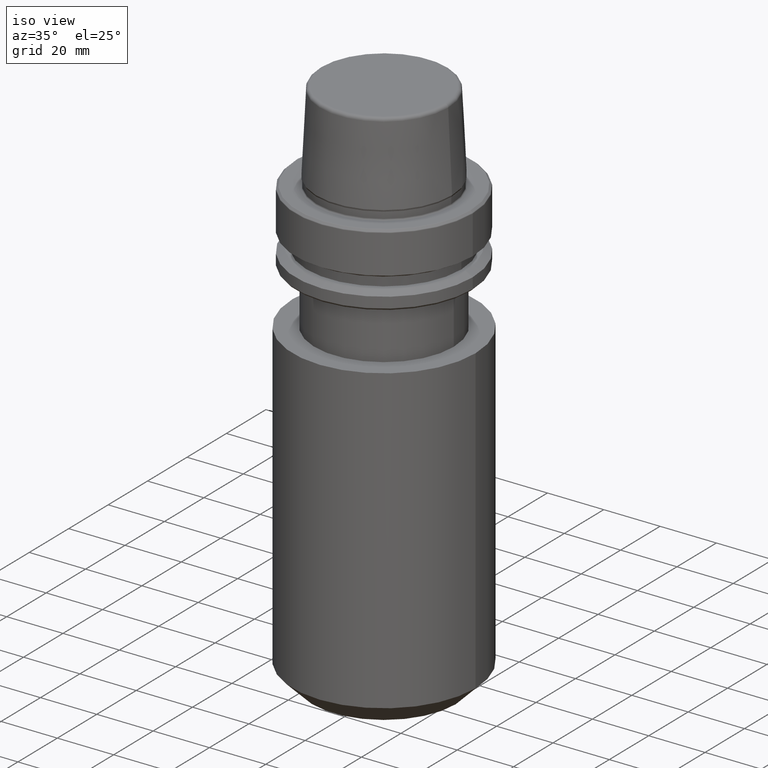
[diagram: clean part render]
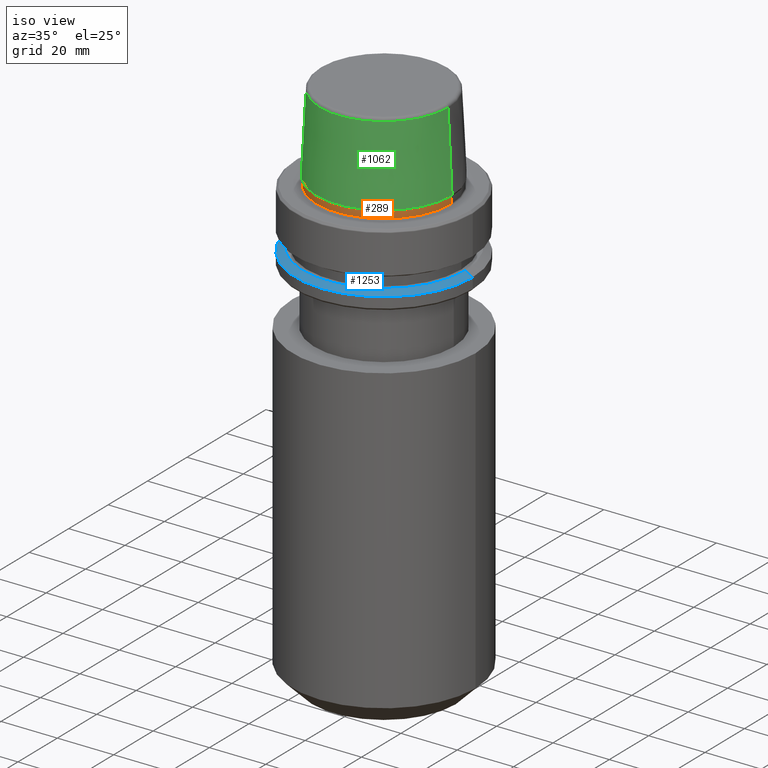
[diagram: same view with three faces highlighted in distinct colors, each labeled with its STEP entity id]
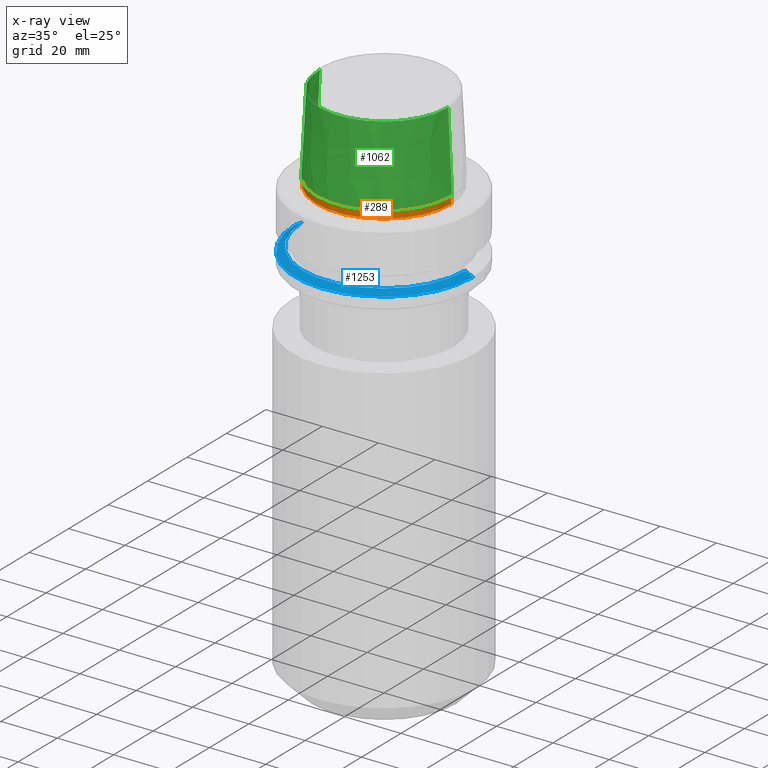
[diagram: x-ray of the same camera — body ghosted, the three highlighted faces saturated]
A machine part, iso view with three faces highlighted in distinct colors.
The next image is the same camera in x-ray (body ghosted, the three faces saturated) — at least one of them is partly hidden behind the body in this view.
Their STEP definitions:

[orange] entity #289 — the highlighted cylindrical surface (partial cylindrical patch) has radius 23.89 mm, axis along (-0, -0, 1).
#1 = DIRECTION ( 'NONE',  ( -0.0000000000000000000, -0.0000000000000000000, 1.000000000000000000 ) ) ;
#19 = AXIS2_PLACEMENT_3D ( 'NONE', #609, #1, #723 ) ;
#30 = LINE ( 'NONE', #692, #541 ) ;
#75 = DIRECTION ( 'NONE',  ( -0.0000000000000000000, -0.0000000000000000000, 1.000000000000000000 ) ) ;
#142 = CIRCLE ( 'NONE', #19, 23.89000000000000100 ) ;
#193 = FACE_OUTER_BOUND ( 'NONE', #762, .T. ) ;
#203 = CARTESIAN_POINT ( 'NONE',  ( 23.89000000000000400, 0.0000000000000000000, 0.1312552021302954000 ) ) ;
#241 = ORIENTED_EDGE ( 'NONE', *, *, #656, .T. ) ;
#286 = CARTESIAN_POINT ( 'NONE',  ( 0.0000000000000000000, 0.0000000000000000000, 0.1312552021302954000 ) ) ;
#289 = ADVANCED_FACE ( 'NONE', ( #193 ), #872, .T. ) ;
#380 = DIRECTION ( 'NONE',  ( 1.000000000000000000, 0.0000000000000000000, 0.0000000000000000000 ) ) ;
#382 = VERTEX_POINT ( 'NONE', #203 ) ;
#386 = CARTESIAN_POINT ( 'NONE',  ( -23.89000000000000400, 2.961613815265650600E-015, 0.1312552021302954000 ) ) ;
#434 = DIRECTION ( 'NONE',  ( 1.000000000000000000, 0.0000000000000000000, 0.0000000000000000000 ) ) ;
#493 = CARTESIAN_POINT ( 'NONE',  ( -23.89000000000000100, 2.942846235451747500E-015, 2.398838415132276100 ) ) ;
#541 = VECTOR ( 'NONE', #75, 1000.000000000000000 ) ;
#609 = CARTESIAN_POINT ( 'NONE',  ( 0.0000000000000000000, 0.0000000000000000000, 2.398838415132276100 ) ) ;
#632 = DIRECTION ( 'NONE',  ( -0.0000000000000000000, -0.0000000000000000000, 1.000000000000000000 ) ) ;
#644 = DIRECTION ( 'NONE',  ( -0.0000000000000000000, -0.0000000000000000000, 1.000000000000000000 ) ) ;
#651 = EDGE_CURVE ( 'NONE', #707, #1182, #30, .T. ) ;
#656 = EDGE_CURVE ( 'NONE', #707, #382, #1095, .T. ) ;
#692 = CARTESIAN_POINT ( 'NONE',  ( -23.89000000000000100, 2.925681203163027000E-015, 78.96908074195309300 ) ) ;
#707 = VERTEX_POINT ( 'NONE', #386 ) ;
#723 = DIRECTION ( 'NONE',  ( 1.000000000000000000, 0.0000000000000000000, 0.0000000000000000000 ) ) ;
#739 = VECTOR ( 'NONE', #644, 1000.000000000000000 ) ;
#762 = EDGE_LOOP ( 'NONE', ( #1339, #241, #1279, #924 ) ) ;
#792 = AXIS2_PLACEMENT_3D ( 'NONE', #286, #1012, #380 ) ;
#841 = CARTESIAN_POINT ( 'NONE',  ( 0.0000000000000000000, 0.0000000000000000000, 78.96908074195309300 ) ) ;
#864 = CARTESIAN_POINT ( 'NONE',  ( 23.89000000000000100, 0.0000000000000000000, 2.398838415132276100 ) ) ;
#872 = CYLINDRICAL_SURFACE ( 'NONE', #1257, 23.89000000000000100 ) ;
#924 = ORIENTED_EDGE ( 'NONE', *, *, #1293, .F. ) ;
#938 = EDGE_CURVE ( 'NONE', #382, #1006, #1313, .T. ) ;
#1006 = VERTEX_POINT ( 'NONE', #864 ) ;
#1012 = DIRECTION ( 'NONE',  ( -0.0000000000000000000, -0.0000000000000000000, 1.000000000000000000 ) ) ;
#1095 = CIRCLE ( 'NONE', #792, 23.89000000000000400 ) ;
#1182 = VERTEX_POINT ( 'NONE', #493 ) ;
#1257 = AXIS2_PLACEMENT_3D ( 'NONE', #841, #632, #434 ) ;
#1272 = CARTESIAN_POINT ( 'NONE',  ( 23.89000000000000100, 0.0000000000000000000, 78.96908074195309300 ) ) ;
#1279 = ORIENTED_EDGE ( 'NONE', *, *, #938, .T. ) ;
#1293 = EDGE_CURVE ( 'NONE', #1182, #1006, #142, .T. ) ;
#1313 = LINE ( 'NONE', #1272, #739 ) ;
#1339 = ORIENTED_EDGE ( 'NONE', *, *, #651, .F. ) ;

[blue] entity #1253 — the highlighted conical surface has half-angle 60 deg.
#36 = EDGE_LOOP ( 'NONE', ( #1029, #661, #1319, #527 ) ) ;
#38 = AXIS2_PLACEMENT_3D ( 'NONE', #165, #827, #966 ) ;
#55 = CARTESIAN_POINT ( 'NONE',  ( -28.94089653438085100, 0.0000000000000000000, -19.90000000000001600 ) ) ;
#97 = CARTESIAN_POINT ( 'NONE',  ( 31.50000000000000000, 0.0000000000000000000, -21.37749907475931700 ) ) ;
#147 = EDGE_CURVE ( 'NONE', #547, #1147, #731, .T. ) ;
#165 = CARTESIAN_POINT ( 'NONE',  ( 0.0000000000000000000, 0.0000000000000000000, -19.90000000000001600 ) ) ;
#205 = CONICAL_SURFACE ( 'NONE', #1081, 31.50000000000000000, 1.047197551196602500 ) ;
#217 = EDGE_CURVE ( 'NONE', #1147, #1296, #676, .T. ) ;
#246 = FACE_OUTER_BOUND ( 'NONE', #36, .T. ) ;
#442 = CARTESIAN_POINT ( 'NONE',  ( 0.0000000000000000000, 0.0000000000000000000, -21.37749907475931700 ) ) ;
#502 = CARTESIAN_POINT ( 'NONE',  ( 0.0000000000000000000, 0.0000000000000000000, -21.37749907475931700 ) ) ;
#515 = CIRCLE ( 'NONE', #38, 28.94089653438085100 ) ;
#527 = ORIENTED_EDGE ( 'NONE', *, *, #217, .T. ) ;
#547 = VERTEX_POINT ( 'NONE', #55 ) ;
#552 = VERTEX_POINT ( 'NONE', #1287 ) ;
#555 = EDGE_CURVE ( 'NONE', #547, #552, #515, .T. ) ;
#558 = AXIS2_PLACEMENT_3D ( 'NONE', #442, #1163, #1073 ) ;
#605 = DIRECTION ( 'NONE',  ( 0.8660254037844410400, 1.060575238724909700E-016, -0.4999999999999958400 ) ) ;
#661 = ORIENTED_EDGE ( 'NONE', *, *, #555, .F. ) ;
#676 = CIRCLE ( 'NONE', #558, 31.50000000000000000 ) ;
#680 = LINE ( 'NONE', #1233, #1171 ) ;
#731 = LINE ( 'NONE', #879, #1194 ) ;
#794 = EDGE_CURVE ( 'NONE', #552, #1296, #680, .T. ) ;
#812 = DIRECTION ( 'NONE',  ( -1.000000000000000000, 0.0000000000000000000, 0.0000000000000000000 ) ) ;
#827 = DIRECTION ( 'NONE',  ( -0.0000000000000000000, -0.0000000000000000000, 1.000000000000000000 ) ) ;
#879 = CARTESIAN_POINT ( 'NONE',  ( -31.50000000000000000, 0.0000000000000000000, -21.37749907475931700 ) ) ;
#887 = CARTESIAN_POINT ( 'NONE',  ( -31.50000000000000000, 3.857637417314162700E-015, -21.37749907475931700 ) ) ;
#966 = DIRECTION ( 'NONE',  ( 1.000000000000000000, 0.0000000000000000000, 0.0000000000000000000 ) ) ;
#1029 = ORIENTED_EDGE ( 'NONE', *, *, #794, .F. ) ;
#1073 = DIRECTION ( 'NONE',  ( 1.000000000000000000, 0.0000000000000000000, 0.0000000000000000000 ) ) ;
#1081 = AXIS2_PLACEMENT_3D ( 'NONE', #502, #1318, #812 ) ;
#1147 = VERTEX_POINT ( 'NONE', #887 ) ;
#1163 = DIRECTION ( 'NONE',  ( -0.0000000000000000000, -0.0000000000000000000, 1.000000000000000000 ) ) ;
#1171 = VECTOR ( 'NONE', #605, 1000.000000000000100 ) ;
#1194 = VECTOR ( 'NONE', #1201, 1000.000000000000100 ) ;
#1201 = DIRECTION ( 'NONE',  ( -0.8660254037844410400, 0.0000000000000000000, -0.4999999999999958400 ) ) ;
#1233 = CARTESIAN_POINT ( 'NONE',  ( 31.50000000000000000, 3.857637417314162700E-015, -21.37749907475931700 ) ) ;
#1253 = ADVANCED_FACE ( 'NONE', ( #246 ), #205, .T. ) ;
#1287 = CARTESIAN_POINT ( 'NONE',  ( 28.94089653438085100, 3.700937523921292900E-015, -19.90000000000001600 ) ) ;
#1296 = VERTEX_POINT ( 'NONE', #97 ) ;
#1318 = DIRECTION ( 'NONE',  ( 0.0000000000000000000, 0.0000000000000000000, -1.000000000000000000 ) ) ;
#1319 = ORIENTED_EDGE ( 'NONE', *, *, #147, .T. ) ;

[green] entity #1062 — the highlighted conical surface has half-angle 2.868 deg.
#243 = LINE ( 'NONE', #704, #478 ) ;
#308 = CARTESIAN_POINT ( 'NONE',  ( -24.17032625081241900, 0.0000000000000000000, 3.000000000000002700 ) ) ;
#333 = DIRECTION ( 'NONE',  ( -0.0000000000000000000, -0.0000000000000000000, 1.000000000000000000 ) ) ;
#353 = EDGE_CURVE ( 'NONE', #1051, #1269, #439, .T. ) ;
#401 = CARTESIAN_POINT ( 'NONE',  ( 24.17032625081241900, 0.0000000000000000000, 3.000000000000002700 ) ) ;
#409 = VECTOR ( 'NONE', #1028, 1000.000000000000200 ) ;
#439 = CIRCLE ( 'NONE', #1322, 24.17032625081241900 ) ;
#478 = VECTOR ( 'NONE', #1321, 1000.000000000000200 ) ;
#556 = DIRECTION ( 'NONE',  ( 0.0000000000000000000, 0.0000000000000000000, -1.000000000000000000 ) ) ;
#557 = ORIENTED_EDGE ( 'NONE', *, *, #726, .F. ) ;
#575 = VERTEX_POINT ( 'NONE', #648 ) ;
#592 = AXIS2_PLACEMENT_3D ( 'NONE', #871, #556, #768 ) ;
#648 = CARTESIAN_POINT ( 'NONE',  ( -22.77957961851797100, 0.0000000000000000000, 30.76004333261571900 ) ) ;
#704 = CARTESIAN_POINT ( 'NONE',  ( 24.17032625081241900, 2.960011267740467600E-015, 3.000000000000002700 ) ) ;
#719 = DIRECTION ( 'NONE',  ( 1.000000000000000000, 0.0000000000000000000, 0.0000000000000000000 ) ) ;
#726 = EDGE_CURVE ( 'NONE', #990, #1269, #243, .T. ) ;
#766 = CIRCLE ( 'NONE', #1177, 22.77957961851797100 ) ;
#768 = DIRECTION ( 'NONE',  ( -1.000000000000000000, 0.0000000000000000000, 0.0000000000000000000 ) ) ;
#821 = CARTESIAN_POINT ( 'NONE',  ( 0.0000000000000000000, 0.0000000000000000000, 3.000000000000002700 ) ) ;
#871 = CARTESIAN_POINT ( 'NONE',  ( 0.0000000000000000000, 0.0000000000000000000, 3.000000000000002700 ) ) ;
#876 = ORIENTED_EDGE ( 'NONE', *, *, #909, .F. ) ;
#909 = EDGE_CURVE ( 'NONE', #575, #990, #766, .T. ) ;
#956 = CARTESIAN_POINT ( 'NONE',  ( 0.0000000000000000000, 0.0000000000000000000, 30.76004333261571900 ) ) ;
#967 = LINE ( 'NONE', #308, #409 ) ;
#983 = CONICAL_SURFACE ( 'NONE', #592, 24.17032625081241900, 0.05005701257456005000 ) ;
#985 = EDGE_LOOP ( 'NONE', ( #557, #876, #1317, #1280 ) ) ;
#990 = VERTEX_POINT ( 'NONE', #1277 ) ;
#1028 = DIRECTION ( 'NONE',  ( -0.05003611051310812000, 0.0000000000000000000, -0.9987474093306675200 ) ) ;
#1051 = VERTEX_POINT ( 'NONE', #1175 ) ;
#1061 = DIRECTION ( 'NONE',  ( 1.000000000000000000, 0.0000000000000000000, 0.0000000000000000000 ) ) ;
#1062 = ADVANCED_FACE ( 'NONE', ( #1295 ), #983, .T. ) ;
#1175 = CARTESIAN_POINT ( 'NONE',  ( -24.17032625081241900, 2.960011267740467600E-015, 3.000000000000002700 ) ) ;
#1177 = AXIS2_PLACEMENT_3D ( 'NONE', #956, #333, #1061 ) ;
#1269 = VERTEX_POINT ( 'NONE', #401 ) ;
#1277 = CARTESIAN_POINT ( 'NONE',  ( 22.77957961851797100, 2.874852597157249900E-015, 30.76004333261571900 ) ) ;
#1280 = ORIENTED_EDGE ( 'NONE', *, *, #353, .T. ) ;
#1284 = EDGE_CURVE ( 'NONE', #575, #1051, #967, .T. ) ;
#1295 = FACE_OUTER_BOUND ( 'NONE', #985, .T. ) ;
#1317 = ORIENTED_EDGE ( 'NONE', *, *, #1284, .T. ) ;
#1321 = DIRECTION ( 'NONE',  ( 0.05003611051310812000, 6.127656258166108900E-018, -0.9987474093306675200 ) ) ;
#1322 = AXIS2_PLACEMENT_3D ( 'NONE', #821, #1338, #719 ) ;
#1338 = DIRECTION ( 'NONE',  ( -0.0000000000000000000, -0.0000000000000000000, 1.000000000000000000 ) ) ;